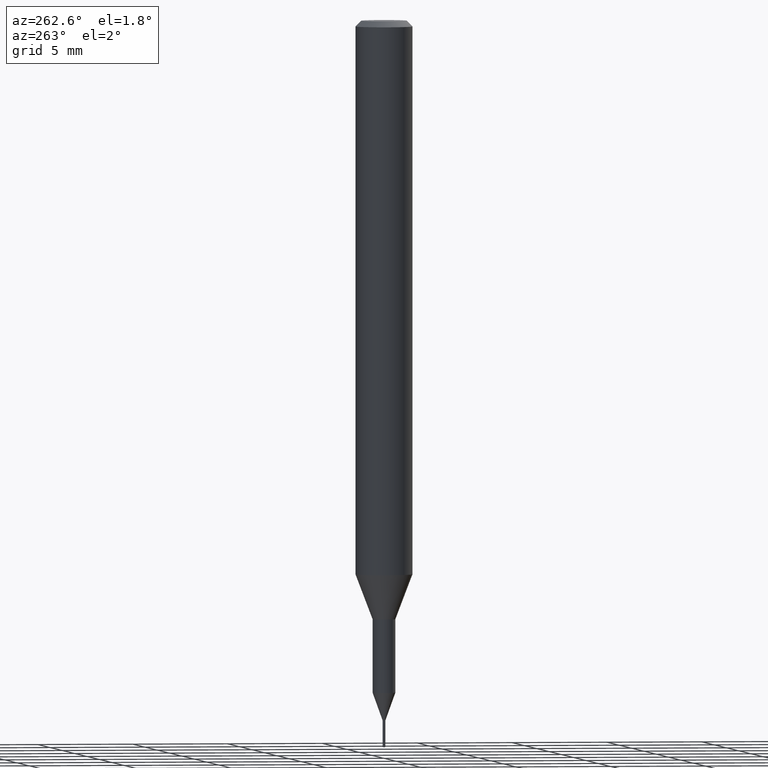
[diagram: clean part render]
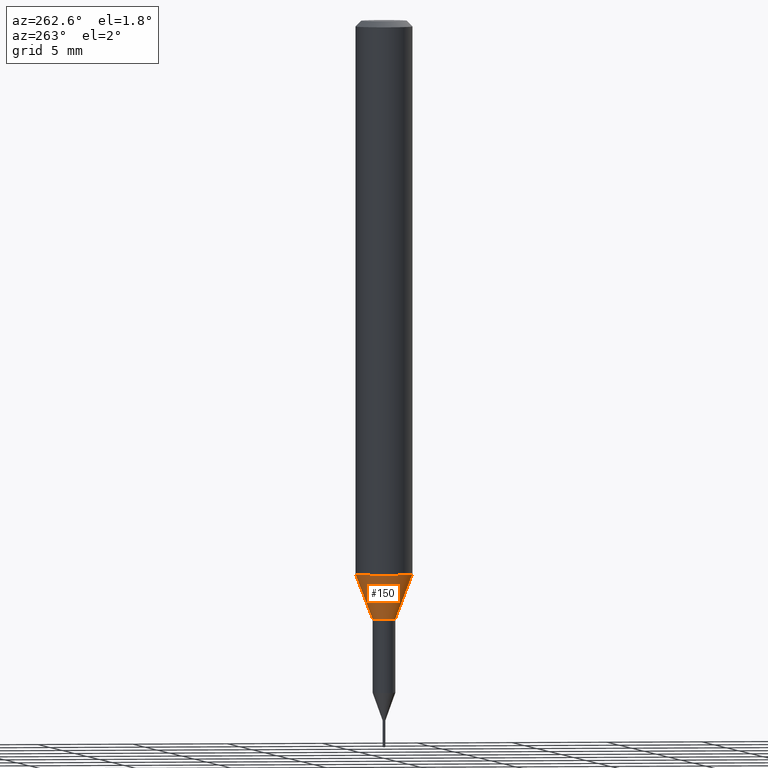
[diagram: same view with one face highlighted and labeled with its STEP entity id]
A machine part, auxiliary view. The second image highlights one B-rep face of the part: STEP entity #150.
In plain terms, the highlighted conical surface has half-angle 20.997 deg.
Its self-contained STEP definition (entity closure, byte-faithful):
#128=VERTEX_POINT('',#309);
#140=VERTEX_POINT('',#323);
#142=VERTEX_POINT('',#325);
#144=VERTEX_POINT('',#327);
#150=ADVANCED_FACE('',(#333),#334,.T.);
#160=EDGE_CURVE('',#140,#128,#345,.T.);
#188=EDGE_CURVE('',#142,#128,#375,.T.);
#190=EDGE_CURVE('',#142,#144,#377,.T.);
#208=EDGE_CURVE('',#144,#140,#397,.T.);
#309=CARTESIAN_POINT('',(0.0,0.6,-31.3));
#323=CARTESIAN_POINT('',(0.0,1.5,-28.955));
#325=CARTESIAN_POINT('',(7.34763812293426E-017,-0.6,-31.3));
#327=CARTESIAN_POINT('',(1.83690953073357E-016,-1.5,-28.955));
#333=FACE_OUTER_BOUND('',#532,.T.);
#334=CONICAL_SURFACE('',#533,1.05,0.366459241971866);
#345=LINE('',#546,#547);
#375=CIRCLE('',#588,0.6);
#377=LINE('',#591,#592);
#397=CIRCLE('',#619,1.5);
#532=EDGE_LOOP('',(#762,#763,#764,#765));
#533=AXIS2_PLACEMENT_3D('',#766,#767,#768);
#546=CARTESIAN_POINT('',(-1.2858366715135E-016,1.05,-30.1275));
#547=VECTOR('',#779,1.0);
#588=AXIS2_PLACEMENT_3D('',#810,#811,#812);
#591=CARTESIAN_POINT('',(1.2858366715135E-016,-1.05,-30.1275));
#592=VECTOR('',#813,1.0);
#619=AXIS2_PLACEMENT_3D('',#843,#844,#845);
#762=ORIENTED_EDGE('',*,*,#160,.T.);
#763=ORIENTED_EDGE('',*,*,#188,.F.);
#764=ORIENTED_EDGE('',*,*,#190,.T.);
#765=ORIENTED_EDGE('',*,*,#208,.T.);
#766=CARTESIAN_POINT('',(0.0,0.0,-30.1275));
#767=DIRECTION('',(-0.0,-0.0,1.0));
#768=DIRECTION('',(0.0,1.0,0.0));
#779=DIRECTION('',(4.38791184365088E-017,-0.358312026550805,-0.93360189140182));
#810=CARTESIAN_POINT('',(0.0,0.0,-31.3));
#811=DIRECTION('',(0.0,0.0,-1.0));
#812=DIRECTION('',(0.0,1.0,0.0));
#813=DIRECTION('',(4.38791184365088E-017,-0.358312026550805,0.93360189140182));
#843=CARTESIAN_POINT('',(0.0,0.0,-28.955));
#844=DIRECTION('',(0.0,0.0,-1.0));
#845=DIRECTION('',(0.0,1.0,0.0));